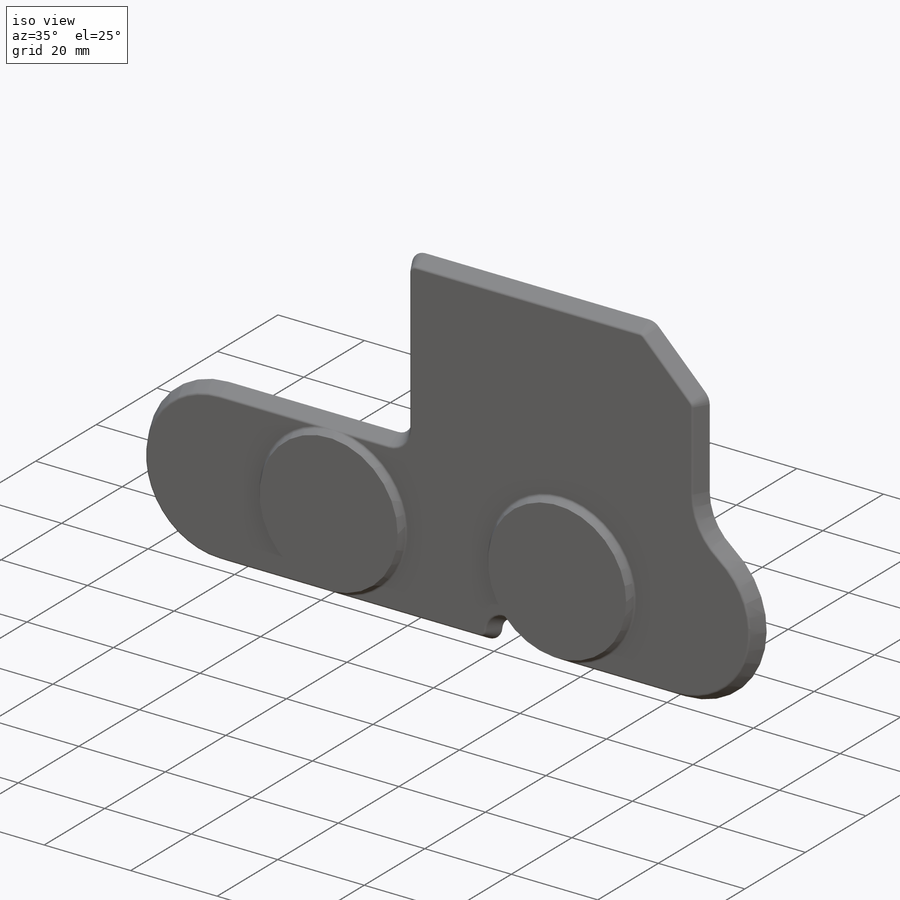
[diagram: iso view]
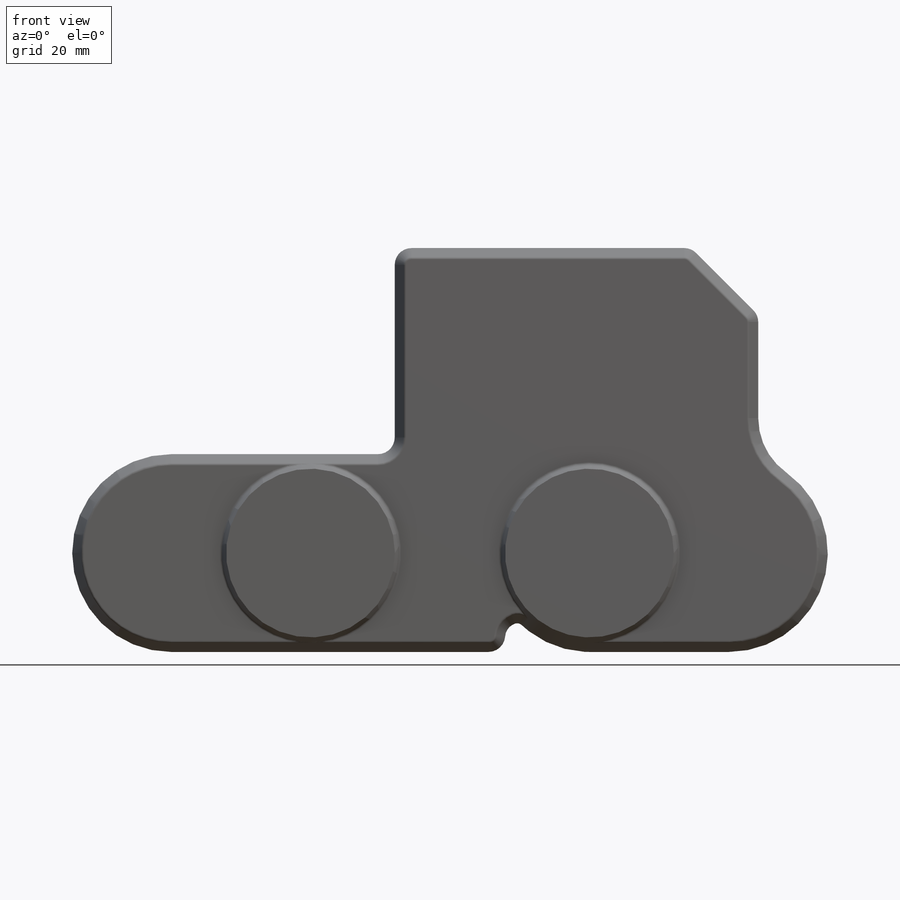
[diagram: front view]
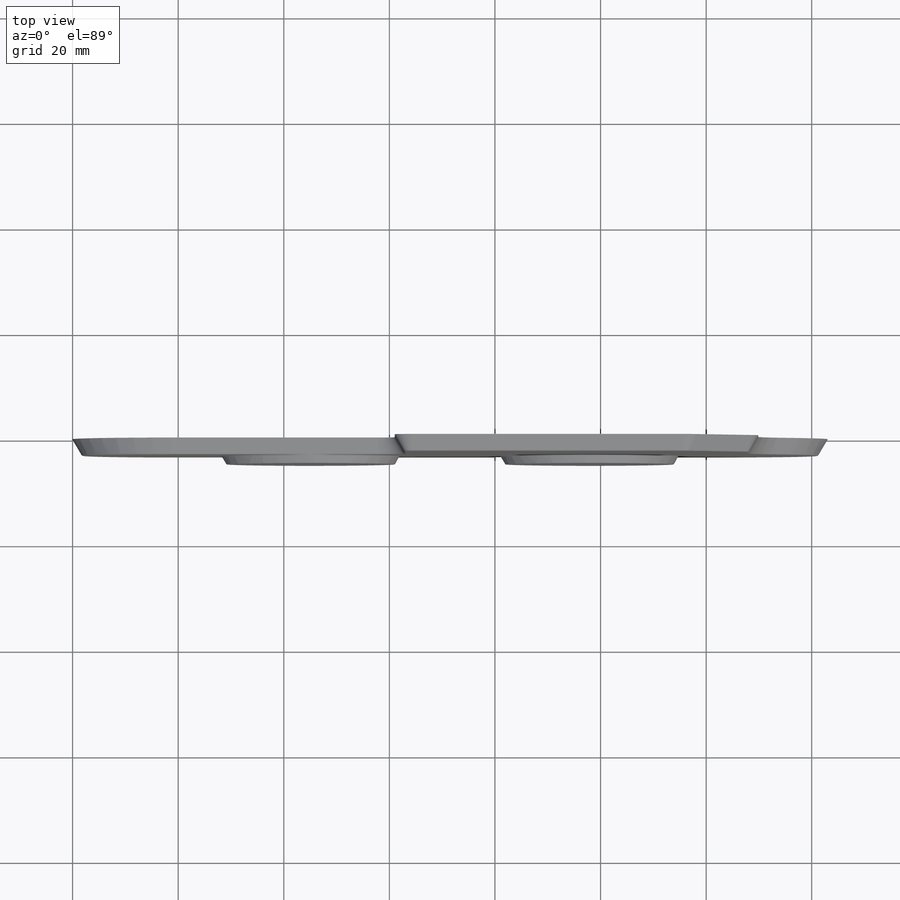
[diagram: top view]
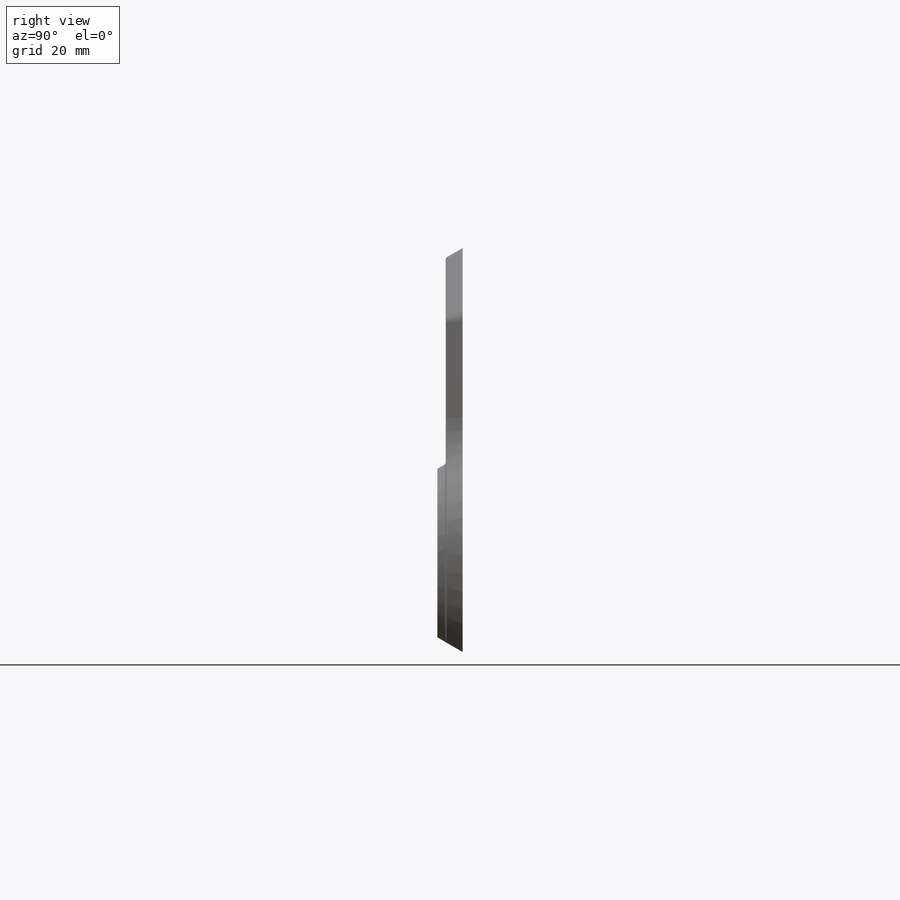
[diagram: right view]
SOLIDWORKS PART (.sldprt)
format: sldprt  version: not decoded by parser v0  size: 497,664 bytes
history: native  units: mm
features: sketch x5, extrude x2, material x1, fillet x1 (+16 scaffold rows collapsed)
feature tree (25):
  scaffold x16  (default folders/planes/origin — collapsed)
  material  "Material <not specified>"
  sketch  "Sketch1"  dims[c1.D3=3.302mm c1.D10=12.7mm c1.D11=2.54mm c1.D12=12.7mm c1.D13=12.7mm c2.D12=2.54mm c2.D13=1.016mm c2.D14=6.35mm c2.D15=12.7mm c2.D16=12.7mm c2.D17=2.54mm c3.D15=10.16mm c3.D17=2.54mm c3.D16=10.16mm c3.D18=2.54mm c3.D10=10.16mm c3.D11=2.54mm c3.D9=10.16mm c3.D19=2.54mm c3.D1=127.0mm c3.D6=70.8279mm c4.D10=84.0486mm c4.D1=144.4244mm c4.D2=122.174mm c4.D3=84.0486mm c4.D4=89.154mm c4.D5=2.54mm c4.D6=70.8279mm c4.D7=84.0486mm c4.D8=134.6708mm c4.D9=134.6708mm c5.D6=80.645mm c5.D2=41.6306mm c5.D7=3.048mm c5.D3=0.0mm c6.D7=0.0mm c6.D3=0.0mm c7.D7=0.0mm c7.D8=0.0mm c7.D9=3.175mm]
  sketch  "Sketch3"  dims[c1.D2=7.366mm c1.D8=6.1341mm c1.D9=6.1341mm c1.D12=10.6045mm c1.D20=4.3053mm c1.D27=3.2512mm c1.D3=26.416mm c1.D4=55.2704mm c1.D15=38.1254mm c1.D1=~18.653125mm c2.D4=15.8242mm c2.D5=0.0mm c2.D6=32.004mm c2.D7=12.954mm c2.D9=20.32mm c2.D10=21.082mm c2.D11=23.114mm c2.D13=15.367mm c2.D14=44.958mm c2.D15=58.928mm c2.D16=28.3464mm c2.D17=6.985mm c2.D18=6.985mm c2.D19=6.985mm c2.D21=4.445mm c2.D22=4.445mm c2.D23=4.445mm c2.D24=6.985mm c2.D25=5.969mm c2.D26=4.2672mm c2.D28=4.2672mm c2.D29=59.7408mm]
  sketch  "Sketch2"  dims[D4=3.175mm D5=3.175mm D7=12.7mm D9=3.175mm D10=1.27mm D6=12.7mm D1=3.3147mm D2=5.7404mm D3=4.8006mm D8=0.0mm]
  extrude  "Extrude1"  Depth=3.175mm
  sketch  "Sketch6"  dims[D4=37.465mm D1=0.0mm D2=0.0mm D3=0.0mm]
  extrude  "Extrude2"  Depth=1.5875mm
  fillet  "Fillet2"  Radius=0.508mm
  sketch  "Orientation Sketch"
decode coverage: 7 of 8 modeling features carry decoded parameters
note: ~ marks probable driven/reference dimensions
note: suppression state not decoded; provenance and decode notes live in map.json
